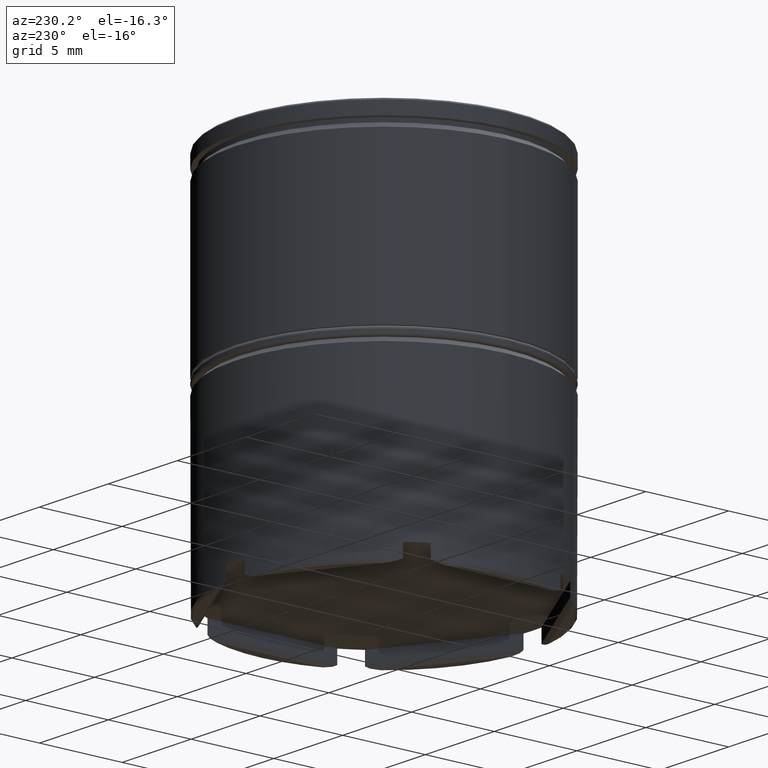
[diagram: clean part render]
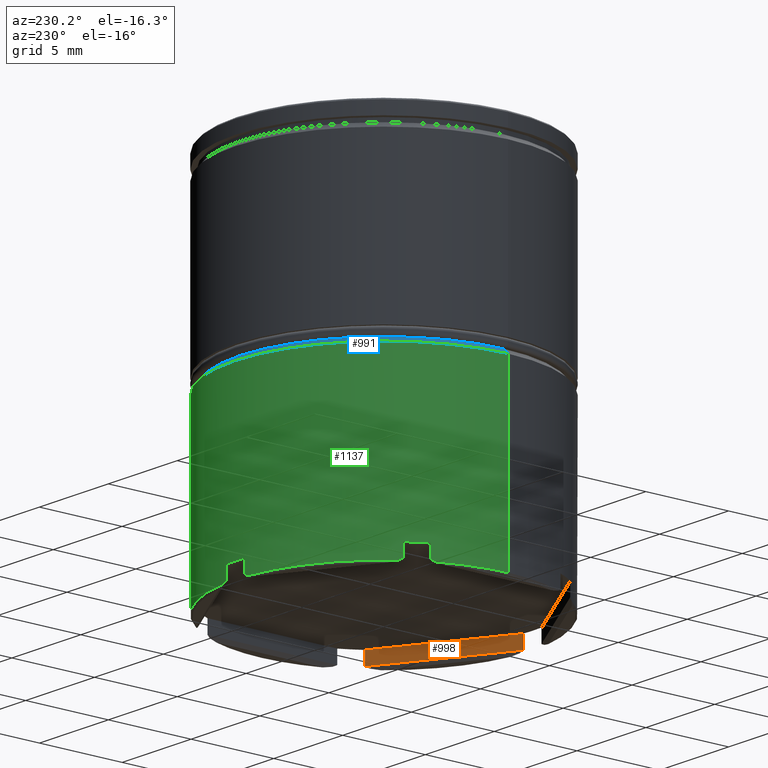
[diagram: same view with three faces highlighted in distinct colors, each labeled with its STEP entity id]
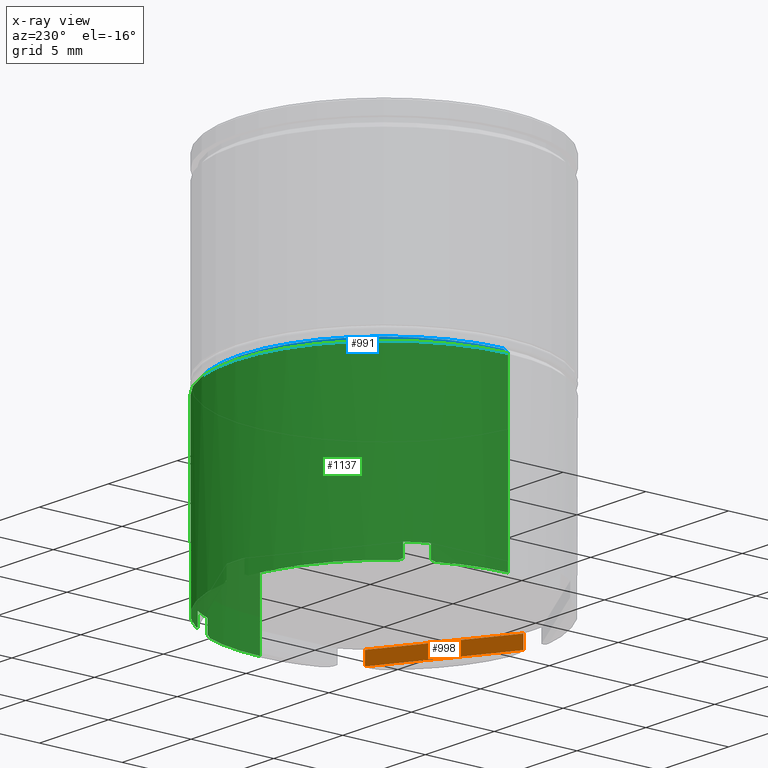
[diagram: x-ray of the same camera — body ghosted, the three highlighted faces saturated]
A machine part, auxiliary view with three faces highlighted in distinct colors.
The next image is the same camera in x-ray (body ghosted, the three faces saturated) — at least one of them is partly hidden behind the body in this view.
Their STEP definitions:

[orange] entity #998 — the highlighted planar face has unit normal (0.5, -0.866, 0).
#52 = CARTESIAN_POINT ( 'NONE',  ( 0.6525745041281718617, -8.976310295247255766, -22.30000000000000426 ) ) ;
#119 = CARTESIAN_POINT ( 'NONE',  ( 7.447425495871829781, -5.053301246060659224, -22.30000000000000426 ) ) ;
#129 = AXIS2_PLACEMENT_3D ( 'NONE', #1172, #540, #641 ) ;
#158 = PLANE ( 'NONE',  #129 ) ;
#178 = CARTESIAN_POINT ( 'NONE',  ( 0.6525745041281688641, -8.976310295247257542, -21.50000000000000000 ) ) ;
#182 = ORIENTED_EDGE ( 'NONE', *, *, #1336, .T. ) ;
#243 = DIRECTION ( 'NONE',  ( -0.8660254037844387076, -0.4999999999999998335, 0.000000000000000000 ) ) ;
#350 = CARTESIAN_POINT ( 'NONE',  ( 0.6525745041281718617, -8.976310295247255766, 0.000000000000000000 ) ) ;
#362 = CARTESIAN_POINT ( 'NONE',  ( 8.100000000000001421, -4.676537180435970775, -21.50000000000000000 ) ) ;
#472 = LINE ( 'NONE', #362, #870 ) ;
#540 = DIRECTION ( 'NONE',  ( 0.4999999999999998335, -0.8660254037844387076, 0.000000000000000000 ) ) ;
#585 = ORIENTED_EDGE ( 'NONE', *, *, #1204, .T. ) ;
#641 = DIRECTION ( 'NONE',  ( 0.8660254037844387076, 0.4999999999999998335, 0.000000000000000000 ) ) ;
#664 = CARTESIAN_POINT ( 'NONE',  ( 7.447425495871829781, -5.053301246060659224, 0.000000000000000000 ) ) ;
#753 = ORIENTED_EDGE ( 'NONE', *, *, #1244, .T. ) ;
#804 = VERTEX_POINT ( 'NONE', #1230 ) ;
#852 = DIRECTION ( 'NONE',  ( -0.000000000000000000, -0.000000000000000000, 1.000000000000000000 ) ) ;
#870 = VECTOR ( 'NONE', #1245, 1000.000000000000114 ) ;
#872 = CARTESIAN_POINT ( 'NONE',  ( 0.8562561154657374329, -8.858714662112531002, -22.30000000000000426 ) ) ;
#971 = LINE ( 'NONE', #350, #1613 ) ;
#998 = ADVANCED_FACE ( 'NONE', ( #1287 ), #158, .F. ) ;
#1016 = VERTEX_POINT ( 'NONE', #178 ) ;
#1115 = EDGE_LOOP ( 'NONE', ( #182, #585, #753, #1161 ) ) ;
#1161 = ORIENTED_EDGE ( 'NONE', *, *, #1243, .F. ) ;
#1171 = VERTEX_POINT ( 'NONE', #119 ) ;
#1172 = CARTESIAN_POINT ( 'NONE',  ( 8.100000000000001421, -4.676537180435970775, -21.50000000000000000 ) ) ;
#1204 = EDGE_CURVE ( 'NONE', #1171, #1494, #1223, .T. ) ;
#1223 = LINE ( 'NONE', #872, #1324 ) ;
#1230 = CARTESIAN_POINT ( 'NONE',  ( 7.447425495871832446, -5.053301246060657448, -21.50000000000000000 ) ) ;
#1243 = EDGE_CURVE ( 'NONE', #804, #1016, #472, .T. ) ;
#1244 = EDGE_CURVE ( 'NONE', #1494, #1016, #971, .T. ) ;
#1245 = DIRECTION ( 'NONE',  ( -0.8660254037844387076, -0.4999999999999998890, 0.000000000000000000 ) ) ;
#1276 = DIRECTION ( 'NONE',  ( 0.000000000000000000, 0.000000000000000000, -1.000000000000000000 ) ) ;
#1287 = FACE_OUTER_BOUND ( 'NONE', #1115, .T. ) ;
#1324 = VECTOR ( 'NONE', #243, 1000.000000000000114 ) ;
#1336 = EDGE_CURVE ( 'NONE', #804, #1171, #1398, .T. ) ;
#1398 = LINE ( 'NONE', #664, #1563 ) ;
#1494 = VERTEX_POINT ( 'NONE', #52 ) ;
#1563 = VECTOR ( 'NONE', #1276, 1000.000000000000000 ) ;
#1613 = VECTOR ( 'NONE', #852, 1000.000000000000000 ) ;

[blue] entity #991 — the highlighted conical surface has half-angle 45 deg.
#23 = LINE ( 'NONE', #1556, #162 ) ;
#59 = LINE ( 'NONE', #1026, #1524 ) ;
#84 = AXIS2_PLACEMENT_3D ( 'NONE', #336, #1473, #963 ) ;
#85 = CARTESIAN_POINT ( 'NONE',  ( 9.000000000000000000, 0.000000000000000000, -11.80000000000000249 ) ) ;
#89 = AXIS2_PLACEMENT_3D ( 'NONE', #1130, #124, #1248 ) ;
#124 = DIRECTION ( 'NONE',  ( 0.000000000000000000, 0.000000000000000000, -1.000000000000000000 ) ) ;
#162 = VECTOR ( 'NONE', #774, 1000.000000000000114 ) ;
#192 = VERTEX_POINT ( 'NONE', #85 ) ;
#208 = EDGE_CURVE ( 'NONE', #470, #1253, #453, .T. ) ;
#251 = DIRECTION ( 'NONE',  ( -1.000000000000000000, 0.000000000000000000, 0.000000000000000000 ) ) ;
#279 = DIRECTION ( 'NONE',  ( 0.000000000000000000, 0.000000000000000000, -1.000000000000000000 ) ) ;
#325 = CARTESIAN_POINT ( 'NONE',  ( -9.000000000000000000, 1.102182119232617714E-15, -11.80000000000000249 ) ) ;
#336 = CARTESIAN_POINT ( 'NONE',  ( 0.000000000000000000, 0.000000000000000000, -11.50000000000000000 ) ) ;
#340 = ORIENTED_EDGE ( 'NONE', *, *, #1541, .F. ) ;
#386 = EDGE_CURVE ( 'NONE', #470, #192, #59, .T. ) ;
#427 = FACE_OUTER_BOUND ( 'NONE', #549, .T. ) ;
#453 = CIRCLE ( 'NONE', #84, 8.699999999999999289 ) ;
#470 = VERTEX_POINT ( 'NONE', #788 ) ;
#536 = DIRECTION ( 'NONE',  ( 0.7071067811865392461, 8.659560562354833018E-17, -0.7071067811865556774 ) ) ;
#549 = EDGE_LOOP ( 'NONE', ( #906, #1156, #340, #1025 ) ) ;
#774 = DIRECTION ( 'NONE',  ( -0.7071067811865392461, 0.000000000000000000, -0.7071067811865556774 ) ) ;
#788 = CARTESIAN_POINT ( 'NONE',  ( 8.699999999999999289, 0.000000000000000000, -11.50000000000000000 ) ) ;
#846 = CONICAL_SURFACE ( 'NONE', #949, 8.700000000000002842, 0.7853981633974367327 ) ;
#906 = ORIENTED_EDGE ( 'NONE', *, *, #208, .F. ) ;
#949 = AXIS2_PLACEMENT_3D ( 'NONE', #1386, #279, #251 ) ;
#963 = DIRECTION ( 'NONE',  ( 1.000000000000000000, 0.000000000000000000, 0.000000000000000000 ) ) ;
#969 = EDGE_CURVE ( 'NONE', #1253, #1051, #23, .T. ) ;
#991 = ADVANCED_FACE ( 'NONE', ( #427 ), #846, .T. ) ;
#1025 = ORIENTED_EDGE ( 'NONE', *, *, #969, .F. ) ;
#1026 = CARTESIAN_POINT ( 'NONE',  ( 8.700000000000002842, 1.065442715258197643E-15, -11.50000000000000000 ) ) ;
#1051 = VERTEX_POINT ( 'NONE', #325 ) ;
#1130 = CARTESIAN_POINT ( 'NONE',  ( 0.000000000000000000, 0.000000000000000000, -11.80000000000000249 ) ) ;
#1156 = ORIENTED_EDGE ( 'NONE', *, *, #386, .T. ) ;
#1248 = DIRECTION ( 'NONE',  ( 1.000000000000000000, 0.000000000000000000, 0.000000000000000000 ) ) ;
#1253 = VERTEX_POINT ( 'NONE', #1357 ) ;
#1357 = CARTESIAN_POINT ( 'NONE',  ( -8.699999999999999289, 1.065442715258197248E-15, -11.50000000000000000 ) ) ;
#1386 = CARTESIAN_POINT ( 'NONE',  ( 0.000000000000000000, 0.000000000000000000, -11.50000000000000000 ) ) ;
#1456 = CIRCLE ( 'NONE', #89, 9.000000000000000000 ) ;
#1473 = DIRECTION ( 'NONE',  ( -0.000000000000000000, -0.000000000000000000, 1.000000000000000000 ) ) ;
#1524 = VECTOR ( 'NONE', #536, 1000.000000000000114 ) ;
#1541 = EDGE_CURVE ( 'NONE', #1051, #192, #1456, .T. ) ;
#1556 = CARTESIAN_POINT ( 'NONE',  ( -8.700000000000002842, 0.000000000000000000, -11.50000000000000000 ) ) ;

[green] entity #1137 — the highlighted cylindrical surface (partial cylindrical patch) has radius 9 mm, axis along (-0, -0, 1).
#1 = VERTEX_POINT ( 'NONE', #1139 ) ;
#5 = CARTESIAN_POINT ( 'NONE',  ( -8.167600284359959772, 3.781069297561888476, -22.36760028435994840 ) ) ;
#11 = CARTESIAN_POINT ( 'NONE',  ( -8.200000000000009948, 3.709447398198260082, -22.40000000000000213 ) ) ;
#19 = DIRECTION ( 'NONE',  ( -0.000000000000000000, -0.000000000000000000, 1.000000000000000000 ) ) ;
#39 = CARTESIAN_POINT ( 'NONE',  ( 8.100000000000001421, 3.923009049186602759, -22.30000000000000782 ) ) ;
#43 = CARTESIAN_POINT ( 'NONE',  ( 0.6525745041281636460, 8.976310295247255766, 0.000000000000000000 ) ) ;
#53 = DIRECTION ( 'NONE',  ( -1.000000000000000000, 0.000000000000000000, 0.000000000000000000 ) ) ;
#63 = VECTOR ( 'NONE', #1298, 1000.000000000000000 ) ;
#66 = CARTESIAN_POINT ( 'NONE',  ( 0.000000000000000000, 0.000000000000000000, 0.000000000000000000 ) ) ;
#77 = CARTESIAN_POINT ( 'NONE',  ( 0.000000000000000000, 0.000000000000000000, -21.50000000000000000 ) ) ;
#85 = CARTESIAN_POINT ( 'NONE',  ( 9.000000000000000000, 0.000000000000000000, -11.80000000000000249 ) ) ;
#89 = AXIS2_PLACEMENT_3D ( 'NONE', #1130, #124, #1248 ) ;
#99 = CARTESIAN_POINT ( 'NONE',  ( 9.000000000000000000, 0.000000000000000000, 0.000000000000000000 ) ) ;
#107 = CARTESIAN_POINT ( 'NONE',  ( -7.447425495871833334, 5.053301246060654783, -22.29999999999999361 ) ) ;
#108 = ORIENTED_EDGE ( 'NONE', *, *, #446, .T. ) ;
#124 = DIRECTION ( 'NONE',  ( 0.000000000000000000, 0.000000000000000000, -1.000000000000000000 ) ) ;
#133 = VERTEX_POINT ( 'NONE', #436 ) ;
#141 = EDGE_CURVE ( 'NONE', #1410, #291, #1195, .T. ) ;
#142 = CARTESIAN_POINT ( 'NONE',  ( 0.000000000000000000, 0.000000000000000000, -21.50000000000000000 ) ) ;
#147 = ORIENTED_EDGE ( 'NONE', *, *, #273, .T. ) ;
#171 = CARTESIAN_POINT ( 'NONE',  ( 8.100000000000001421, 3.923009049186602759, -21.50000000000000000 ) ) ;
#173 =( BOUNDED_CURVE ( )  B_SPLINE_CURVE ( 3, ( #357, #1120, #1126, #467 ),
 .UNSPECIFIED., .F., .T. ) 
 B_SPLINE_CURVE_WITH_KNOTS ( ( 4, 4 ),
 ( 2.690565841793531199, 2.716768226110907403 ),
 .UNSPECIFIED. ) 
 CURVE ( )  GEOMETRIC_REPRESENTATION_ITEM ( )  RATIONAL_B_SPLINE_CURVE ( ( 1.000000000000000000, 0.9999427870730221990, 0.9999427870730221990, 1.000000000000000000 ) ) 
 REPRESENTATION_ITEM ( '' )  );
#186 = FACE_OUTER_BOUND ( 'NONE', #1547, .T. ) ;
#192 = VERTEX_POINT ( 'NONE', #85 ) ;
#193 = EDGE_CURVE ( 'NONE', #684, #1168, #561, .T. ) ;
#194 = AXIS2_PLACEMENT_3D ( 'NONE', #205, #692, #53 ) ;
#197 = EDGE_CURVE ( 'NONE', #266, #192, #1098, .T. ) ;
#200 = ORIENTED_EDGE ( 'NONE', *, *, #1191, .T. ) ;
#201 = DIRECTION ( 'NONE',  ( -0.000000000000000000, -0.000000000000000000, 1.000000000000000000 ) ) ;
#202 = ORIENTED_EDGE ( 'NONE', *, *, #197, .F. ) ;
#205 = CARTESIAN_POINT ( 'NONE',  ( 0.000000000000000000, 0.000000000000000000, -22.40000000000000213 ) ) ;
#210 = CARTESIAN_POINT ( 'NONE',  ( 7.312475680841810544, 5.246684611933241982, -22.40000000000000213 ) ) ;
#217 = AXIS2_PLACEMENT_3D ( 'NONE', #880, #19, #1031 ) ;
#222 = VERTEX_POINT ( 'NONE', #841 ) ;
#223 = DIRECTION ( 'NONE',  ( -1.000000000000000000, 1.421085471520200372E-14, 0.000000000000000000 ) ) ;
#238 =( BOUNDED_CURVE ( )  B_SPLINE_CURVE ( 3, ( #1094, #845, #1340, #210 ),
 .UNSPECIFIED., .F., .T. ) 
 B_SPLINE_CURVE_WITH_KNOTS ( ( 4, 4 ),
 ( 2.690565841793530755, 2.716768226110903406 ),
 .UNSPECIFIED. ) 
 CURVE ( )  GEOMETRIC_REPRESENTATION_ITEM ( )  RATIONAL_B_SPLINE_CURVE ( ( 1.000000000000000000, 0.9999427870730221990, 0.9999427870730221990, 1.000000000000000000 ) ) 
 REPRESENTATION_ITEM ( '' )  );
#239 = CARTESIAN_POINT ( 'NONE',  ( 0.8875243191581826396, 8.956132010131536703, -22.40000000000000213 ) ) ;
#254 = CARTESIAN_POINT ( 'NONE',  ( 9.000000000000000000, 0.000000000000000000, -22.40000000000000213 ) ) ;
#256 = VECTOR ( 'NONE', #312, 1000.000000000000000 ) ;
#259 = CARTESIAN_POINT ( 'NONE',  ( -8.100000000000003197, 3.923009049186599206, -22.29999999999999716 ) ) ;
#266 = VERTEX_POINT ( 'NONE', #254 ) ;
#273 = EDGE_CURVE ( 'NONE', #416, #1, #1109, .T. ) ;
#291 = VERTEX_POINT ( 'NONE', #893 ) ;
#312 = DIRECTION ( 'NONE',  ( 0.000000000000000000, 0.000000000000000000, -1.000000000000000000 ) ) ;
#318 = CARTESIAN_POINT ( 'NONE',  ( -9.000000000000000000, 1.102182119232617714E-15, -22.40000000000000213 ) ) ;
#325 = CARTESIAN_POINT ( 'NONE',  ( -9.000000000000000000, 1.102182119232617714E-15, -11.80000000000000249 ) ) ;
#334 = ORIENTED_EDGE ( 'NONE', *, *, #193, .T. ) ;
#351 =( BOUNDED_CURVE ( )  B_SPLINE_CURVE ( 3, ( #522, #1421, #1395, #39 ),
 .UNSPECIFIED., .F., .T. ) 
 B_SPLINE_CURVE_WITH_KNOTS ( ( 4, 4 ),
 ( 3.566417081068681494, 3.592619465386055033 ),
 .UNSPECIFIED. ) 
 CURVE ( )  GEOMETRIC_REPRESENTATION_ITEM ( )  RATIONAL_B_SPLINE_CURVE ( ( 1.000000000000000000, 0.9999427870730221990, 0.9999427870730221990, 1.000000000000000000 ) ) 
 REPRESENTATION_ITEM ( '' )  );
#357 = CARTESIAN_POINT ( 'NONE',  ( -0.6525745041281640901, 8.976310295247255766, -22.29999999999999361 ) ) ;
#364 = ORIENTED_EDGE ( 'NONE', *, *, #1440, .T. ) ;
#375 = VERTEX_POINT ( 'NONE', #1194 ) ;
#384 = ORIENTED_EDGE ( 'NONE', *, *, #1346, .T. ) ;
#398 = CARTESIAN_POINT ( 'NONE',  ( -8.134265043819940644, 3.852260587620083498, -22.33426504381992928 ) ) ;
#409 = EDGE_CURVE ( 'NONE', #734, #982, #1475, .T. ) ;
#416 = VERTEX_POINT ( 'NONE', #171 ) ;
#421 = CARTESIAN_POINT ( 'NONE',  ( -8.100000000000003197, 3.923009049186599206, -22.29999999999999716 ) ) ;
#433 = VECTOR ( 'NONE', #610, 1000.000000000000000 ) ;
#436 = CARTESIAN_POINT ( 'NONE',  ( 7.312475680841810544, 5.246684611933241982, -22.40000000000000213 ) ) ;
#446 = EDGE_CURVE ( 'NONE', #839, #523, #351, .T. ) ;
#465 = DIRECTION ( 'NONE',  ( -0.000000000000000000, -0.000000000000000000, 1.000000000000000000 ) ) ;
#467 = CARTESIAN_POINT ( 'NONE',  ( -0.8875243191582230518, 8.956132010131536703, -22.40000000000000213 ) ) ;
#476 = VECTOR ( 'NONE', #465, 1000.000000000000000 ) ;
#481 = CARTESIAN_POINT ( 'NONE',  ( -0.6525745041281640901, 8.976310295247255766, -21.50000000000000000 ) ) ;
#491 = LINE ( 'NONE', #1087, #1220 ) ;
#509 = CARTESIAN_POINT ( 'NONE',  ( -8.100000000000003197, 3.923009049186599206, 0.000000000000000000 ) ) ;
#511 = VERTEX_POINT ( 'NONE', #421 ) ;
#522 = CARTESIAN_POINT ( 'NONE',  ( 8.199999999999999289, 3.709447398198280066, -22.40000000000000213 ) ) ;
#523 = VERTEX_POINT ( 'NONE', #919 ) ;
#542 = ORIENTED_EDGE ( 'NONE', *, *, #1332, .F. ) ;
#548 = DIRECTION ( 'NONE',  ( -0.000000000000000000, -0.000000000000000000, 1.000000000000000000 ) ) ;
#560 = CARTESIAN_POINT ( 'NONE',  ( 7.447425495871836887, 5.053301246060648566, -22.30000000000000782 ) ) ;
#561 = CIRCLE ( 'NONE', #821, 9.000000000000000000 ) ;
#584 = ORIENTED_EDGE ( 'NONE', *, *, #866, .T. ) ;
#594 = DIRECTION ( 'NONE',  ( -0.000000000000000000, -0.000000000000000000, 1.000000000000000000 ) ) ;
#595 = AXIS2_PLACEMENT_3D ( 'NONE', #1198, #1445, #1188 ) ;
#604 = CARTESIAN_POINT ( 'NONE',  ( -0.6525745041281640901, 8.976310295247255766, 0.000000000000000000 ) ) ;
#610 = DIRECTION ( 'NONE',  ( -0.000000000000000000, -0.000000000000000000, 1.000000000000000000 ) ) ;
#611 = ORIENTED_EDGE ( 'NONE', *, *, #1541, .T. ) ;
#646 = CARTESIAN_POINT ( 'NONE',  ( -8.200000000000009948, 3.709447398198260082, -22.40000000000000213 ) ) ;
#651 = EDGE_CURVE ( 'NONE', #1410, #1387, #1192, .T. ) ;
#662 = EDGE_CURVE ( 'NONE', #1419, #133, #238, .T. ) ;
#668 = CIRCLE ( 'NONE', #217, 9.000000000000000000 ) ;
#677 = VERTEX_POINT ( 'NONE', #318 ) ;
#684 = VERTEX_POINT ( 'NONE', #1077 ) ;
#688 = EDGE_CURVE ( 'NONE', #416, #523, #937, .T. ) ;
#692 = DIRECTION ( 'NONE',  ( -0.000000000000000000, -0.000000000000000000, 1.000000000000000000 ) ) ;
#697 = DIRECTION ( 'NONE',  ( 0.000000000000000000, 0.000000000000000000, -1.000000000000000000 ) ) ;
#698 = ORIENTED_EDGE ( 'NONE', *, *, #688, .F. ) ;
#699 = EDGE_CURVE ( 'NONE', #884, #677, #1196, .T. ) ;
#717 = ORIENTED_EDGE ( 'NONE', *, *, #1127, .T. ) ;
#723 = DIRECTION ( 'NONE',  ( -1.000000000000000000, -2.664535259100375303E-15, 0.000000000000000000 ) ) ;
#727 = CARTESIAN_POINT ( 'NONE',  ( -7.358302207337953149, 5.182814685431787360, -22.36760028435994840 ) ) ;
#734 = VERTEX_POINT ( 'NONE', #239 ) ;
#751 = ORIENTED_EDGE ( 'NONE', *, *, #409, .T. ) ;
#773 = LINE ( 'NONE', #509, #63 ) ;
#805 = DIRECTION ( 'NONE',  ( 0.000000000000000000, 0.000000000000000000, -1.000000000000000000 ) ) ;
#806 = LINE ( 'NONE', #814, #1610 ) ;
#809 = CARTESIAN_POINT ( 'NONE',  ( 0.6525745041281636460, 8.976310295247255766, -22.30000000000000782 ) ) ;
#814 = CARTESIAN_POINT ( 'NONE',  ( -9.000000000000000000, 1.102182119232617714E-15, 0.000000000000000000 ) ) ;
#821 = AXIS2_PLACEMENT_3D ( 'NONE', #1486, #594, #223 ) ;
#826 = CARTESIAN_POINT ( 'NONE',  ( 0.000000000000000000, 0.000000000000000000, -22.40000000000000213 ) ) ;
#833 = ORIENTED_EDGE ( 'NONE', *, *, #1070, .T. ) ;
#838 = CARTESIAN_POINT ( 'NONE',  ( -7.447425495871833334, 5.053301246060654783, 0.000000000000000000 ) ) ;
#839 = VERTEX_POINT ( 'NONE', #1498 ) ;
#841 = CARTESIAN_POINT ( 'NONE',  ( -0.8875243191582230518, 8.956132010131536703, -22.40000000000000213 ) ) ;
#845 = CARTESIAN_POINT ( 'NONE',  ( 7.403288052786542117, 5.118349875253747960, -22.33426504381993993 ) ) ;
#866 = EDGE_CURVE ( 'NONE', #511, #884, #966, .T. ) ;
#880 = CARTESIAN_POINT ( 'NONE',  ( 0.000000000000000000, 0.000000000000000000, -22.40000000000000213 ) ) ;
#884 = VERTEX_POINT ( 'NONE', #646 ) ;
#893 = CARTESIAN_POINT ( 'NONE',  ( -8.100000000000003197, 3.923009049186599206, -21.50000000000000000 ) ) ;
#919 = CARTESIAN_POINT ( 'NONE',  ( 8.100000000000001421, 3.923009049186602759, -22.30000000000000782 ) ) ;
#937 = LINE ( 'NONE', #1442, #256 ) ;
#964 = LINE ( 'NONE', #604, #433 ) ;
#966 =( BOUNDED_CURVE ( )  B_SPLINE_CURVE ( 3, ( #259, #398, #5, #11 ),
 .UNSPECIFIED., .F., .T. ) 
 B_SPLINE_CURVE_WITH_KNOTS ( ( 4, 4 ),
 ( 2.690565841793531643, 2.716768226110907847 ),
 .UNSPECIFIED. ) 
 CURVE ( )  GEOMETRIC_REPRESENTATION_ITEM ( )  RATIONAL_B_SPLINE_CURVE ( ( 1.000000000000000000, 0.9999427870730221990, 0.9999427870730221990, 1.000000000000000000 ) ) 
 REPRESENTATION_ITEM ( '' )  );
#982 = VERTEX_POINT ( 'NONE', #1409 ) ;
#1010 = DIRECTION ( 'NONE',  ( -1.000000000000000000, 0.000000000000000000, 0.000000000000000000 ) ) ;
#1013 = ORIENTED_EDGE ( 'NONE', *, *, #1489, .F. ) ;
#1030 = CIRCLE ( 'NONE', #595, 9.000000000000000000 ) ;
#1031 = DIRECTION ( 'NONE',  ( -1.000000000000000000, 0.000000000000000000, 0.000000000000000000 ) ) ;
#1035 = ORIENTED_EDGE ( 'NONE', *, *, #662, .T. ) ;
#1048 = VERTEX_POINT ( 'NONE', #1446 ) ;
#1051 = VERTEX_POINT ( 'NONE', #325 ) ;
#1055 = ORIENTED_EDGE ( 'NONE', *, *, #1213, .F. ) ;
#1068 = CARTESIAN_POINT ( 'NONE',  ( 0.8092980770219712072, 8.963883982993674948, -22.36760028435995196 ) ) ;
#1070 = EDGE_CURVE ( 'NONE', #133, #734, #1294, .T. ) ;
#1071 = DIRECTION ( 'NONE',  ( -1.000000000000000000, 0.000000000000000000, 0.000000000000000000 ) ) ;
#1075 = DIRECTION ( 'NONE',  ( -0.000000000000000000, -0.000000000000000000, 1.000000000000000000 ) ) ;
#1077 = CARTESIAN_POINT ( 'NONE',  ( 0.6525745041281636460, 8.976310295247255766, -21.50000000000000000 ) ) ;
#1082 =( BOUNDED_CURVE ( )  B_SPLINE_CURVE ( 3, ( #1104, #727, #1469, #107 ),
 .UNSPECIFIED., .F., .T. ) 
 B_SPLINE_CURVE_WITH_KNOTS ( ( 4, 4 ),
 ( 3.566417081068677941, 3.592619465386055033 ),
 .UNSPECIFIED. ) 
 CURVE ( )  GEOMETRIC_REPRESENTATION_ITEM ( )  RATIONAL_B_SPLINE_CURVE ( ( 1.000000000000000000, 0.9999427870730221990, 0.9999427870730221990, 1.000000000000000000 ) ) 
 REPRESENTATION_ITEM ( '' )  );
#1087 = CARTESIAN_POINT ( 'NONE',  ( 7.447425495871836887, 5.053301246060648566, 0.000000000000000000 ) ) ;
#1094 = CARTESIAN_POINT ( 'NONE',  ( 7.447425495871836887, 5.053301246060648566, -22.30000000000000782 ) ) ;
#1098 = LINE ( 'NONE', #99, #476 ) ;
#1104 = CARTESIAN_POINT ( 'NONE',  ( -7.312475680841782122, 5.246684611933282838, -22.40000000000000213 ) ) ;
#1109 = CIRCLE ( 'NONE', #1320, 9.000000000000000000 ) ;
#1114 = AXIS2_PLACEMENT_3D ( 'NONE', #66, #1075, #1574 ) ;
#1120 = CARTESIAN_POINT ( 'NONE',  ( -0.7309769910334018572, 8.970610462873848334, -22.33426504381992928 ) ) ;
#1126 = CARTESIAN_POINT ( 'NONE',  ( -0.8092980770219935227, 8.963883982993673172, -22.36760028435994840 ) ) ;
#1127 = EDGE_CURVE ( 'NONE', #677, #1051, #806, .T. ) ;
#1130 = CARTESIAN_POINT ( 'NONE',  ( 0.000000000000000000, 0.000000000000000000, -11.80000000000000249 ) ) ;
#1137 = ADVANCED_FACE ( 'NONE', ( #186 ), #1199, .T. ) ;
#1139 = CARTESIAN_POINT ( 'NONE',  ( 7.447425495871836887, 5.053301246060648566, -21.50000000000000000 ) ) ;
#1151 = DIRECTION ( 'NONE',  ( -0.000000000000000000, -0.000000000000000000, 1.000000000000000000 ) ) ;
#1165 = ORIENTED_EDGE ( 'NONE', *, *, #1596, .F. ) ;
#1168 = VERTEX_POINT ( 'NONE', #481 ) ;
#1177 = CARTESIAN_POINT ( 'NONE',  ( 0.7309769910333904219, 8.970610462873850111, -22.33426504381993638 ) ) ;
#1178 = ORIENTED_EDGE ( 'NONE', *, *, #1219, .T. ) ;
#1179 = LINE ( 'NONE', #43, #1266 ) ;
#1188 = DIRECTION ( 'NONE',  ( -1.000000000000000000, 8.881784197001252323E-16, 0.000000000000000000 ) ) ;
#1191 = EDGE_CURVE ( 'NONE', #1048, #222, #173, .T. ) ;
#1192 = LINE ( 'NONE', #838, #1347 ) ;
#1194 = CARTESIAN_POINT ( 'NONE',  ( -7.312475680841782122, 5.246684611933282838, -22.40000000000000213 ) ) ;
#1195 = CIRCLE ( 'NONE', #1344, 9.000000000000000000 ) ;
#1196 = CIRCLE ( 'NONE', #1392, 9.000000000000000000 ) ;
#1198 = CARTESIAN_POINT ( 'NONE',  ( 0.000000000000000000, 0.000000000000000000, -22.40000000000000213 ) ) ;
#1199 = CYLINDRICAL_SURFACE ( 'NONE', #1114, 9.000000000000000000 ) ;
#1213 = EDGE_CURVE ( 'NONE', #1048, #1168, #964, .T. ) ;
#1219 = EDGE_CURVE ( 'NONE', #375, #1387, #1082, .T. ) ;
#1220 = VECTOR ( 'NONE', #1496, 1000.000000000000000 ) ;
#1248 = DIRECTION ( 'NONE',  ( 1.000000000000000000, 0.000000000000000000, 0.000000000000000000 ) ) ;
#1266 = VECTOR ( 'NONE', #805, 1000.000000000000000 ) ;
#1294 = CIRCLE ( 'NONE', #194, 9.000000000000000000 ) ;
#1298 = DIRECTION ( 'NONE',  ( -0.000000000000000000, -0.000000000000000000, 1.000000000000000000 ) ) ;
#1314 = DIRECTION ( 'NONE',  ( -0.000000000000000000, -0.000000000000000000, 1.000000000000000000 ) ) ;
#1320 = AXIS2_PLACEMENT_3D ( 'NONE', #142, #1151, #1010 ) ;
#1332 = EDGE_CURVE ( 'NONE', #511, #291, #773, .T. ) ;
#1340 = CARTESIAN_POINT ( 'NONE',  ( 7.358302207337974465, 5.182814685431758939, -22.36760028435995196 ) ) ;
#1344 = AXIS2_PLACEMENT_3D ( 'NONE', #77, #548, #1071 ) ;
#1346 = EDGE_CURVE ( 'NONE', #266, #839, #668, .T. ) ;
#1347 = VECTOR ( 'NONE', #697, 1000.000000000000000 ) ;
#1384 = CARTESIAN_POINT ( 'NONE',  ( -7.447425495871833334, 5.053301246060654783, -21.50000000000000000 ) ) ;
#1387 = VERTEX_POINT ( 'NONE', #1545 ) ;
#1392 = AXIS2_PLACEMENT_3D ( 'NONE', #826, #201, #723 ) ;
#1395 = CARTESIAN_POINT ( 'NONE',  ( 8.134265043819933538, 3.852260587620092824, -22.33426504381993993 ) ) ;
#1396 = ORIENTED_EDGE ( 'NONE', *, *, #651, .F. ) ;
#1409 = CARTESIAN_POINT ( 'NONE',  ( 0.6525745041281636460, 8.976310295247255766, -22.30000000000000782 ) ) ;
#1410 = VERTEX_POINT ( 'NONE', #1384 ) ;
#1419 = VERTEX_POINT ( 'NONE', #560 ) ;
#1421 = CARTESIAN_POINT ( 'NONE',  ( 8.167600284359950891, 3.781069297561905351, -22.36760028435994840 ) ) ;
#1440 = EDGE_CURVE ( 'NONE', #222, #375, #1030, .T. ) ;
#1442 = CARTESIAN_POINT ( 'NONE',  ( 8.100000000000001421, 3.923009049186602759, 0.000000000000000000 ) ) ;
#1445 = DIRECTION ( 'NONE',  ( -0.000000000000000000, -0.000000000000000000, 1.000000000000000000 ) ) ;
#1446 = CARTESIAN_POINT ( 'NONE',  ( -0.6525745041281640901, 8.976310295247255766, -22.29999999999999361 ) ) ;
#1456 = CIRCLE ( 'NONE', #89, 9.000000000000000000 ) ;
#1469 = CARTESIAN_POINT ( 'NONE',  ( -7.403288052786527906, 5.118349875253765724, -22.33426504381992928 ) ) ;
#1475 =( BOUNDED_CURVE ( )  B_SPLINE_CURVE ( 3, ( #1606, #1068, #1177, #809 ),
 .UNSPECIFIED., .F., .T. ) 
 B_SPLINE_CURVE_WITH_KNOTS ( ( 4, 4 ),
 ( 3.566417081068683270, 3.592619465386055477 ),
 .UNSPECIFIED. ) 
 CURVE ( )  GEOMETRIC_REPRESENTATION_ITEM ( )  RATIONAL_B_SPLINE_CURVE ( ( 1.000000000000000000, 0.9999427870730221990, 0.9999427870730221990, 1.000000000000000000 ) ) 
 REPRESENTATION_ITEM ( '' )  );
#1486 = CARTESIAN_POINT ( 'NONE',  ( 0.000000000000000000, 0.000000000000000000, -21.50000000000000000 ) ) ;
#1489 = EDGE_CURVE ( 'NONE', #684, #982, #1179, .T. ) ;
#1496 = DIRECTION ( 'NONE',  ( -0.000000000000000000, -0.000000000000000000, 1.000000000000000000 ) ) ;
#1498 = CARTESIAN_POINT ( 'NONE',  ( 8.199999999999999289, 3.709447398198280066, -22.40000000000000213 ) ) ;
#1504 = ORIENTED_EDGE ( 'NONE', *, *, #141, .T. ) ;
#1541 = EDGE_CURVE ( 'NONE', #1051, #192, #1456, .T. ) ;
#1545 = CARTESIAN_POINT ( 'NONE',  ( -7.447425495871833334, 5.053301246060654783, -22.29999999999999361 ) ) ;
#1547 = EDGE_LOOP ( 'NONE', ( #1557, #717, #611, #202, #384, #108, #698, #147, #1165, #1035, #833, #751, #1013, #334, #1055, #200, #364, #1178, #1396, #1504, #542, #584 ) ) ;
#1557 = ORIENTED_EDGE ( 'NONE', *, *, #699, .T. ) ;
#1574 = DIRECTION ( 'NONE',  ( 1.000000000000000000, 0.000000000000000000, 0.000000000000000000 ) ) ;
#1596 = EDGE_CURVE ( 'NONE', #1419, #1, #491, .T. ) ;
#1606 = CARTESIAN_POINT ( 'NONE',  ( 0.8875243191581826396, 8.956132010131536703, -22.40000000000000213 ) ) ;
#1610 = VECTOR ( 'NONE', #1314, 1000.000000000000000 ) ;